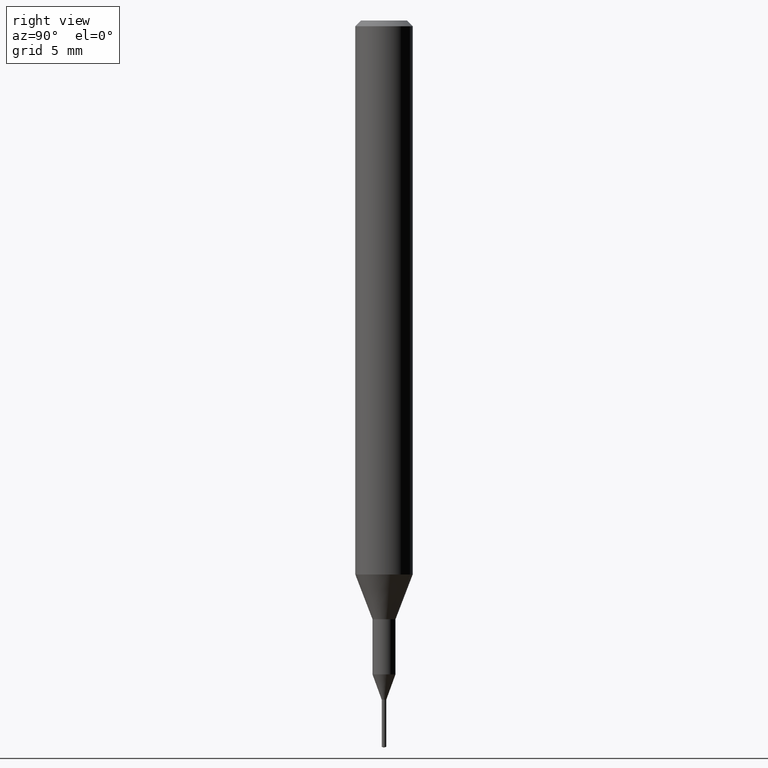
[diagram: clean part render]
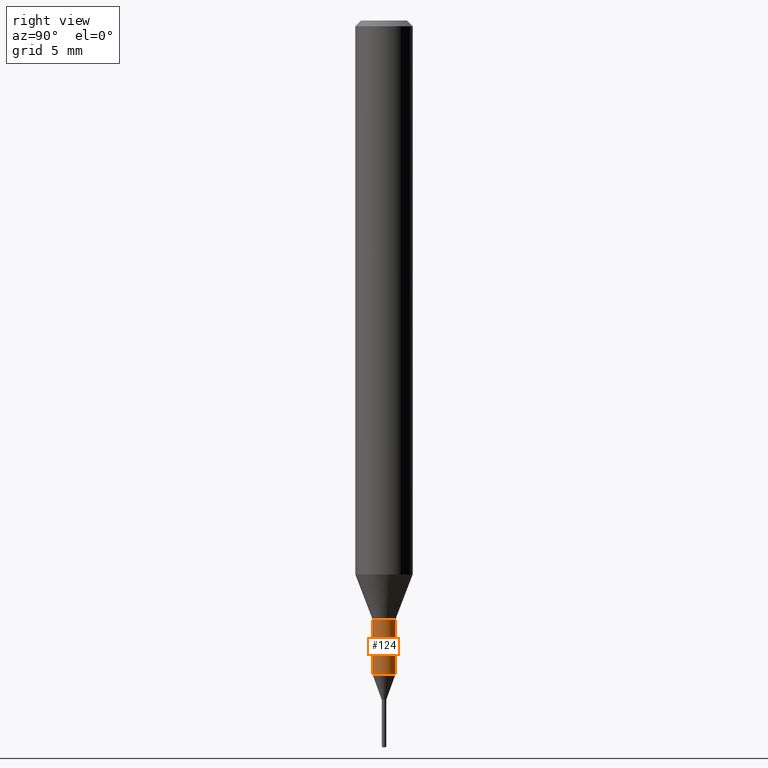
[diagram: same view with one face highlighted and labeled with its STEP entity id]
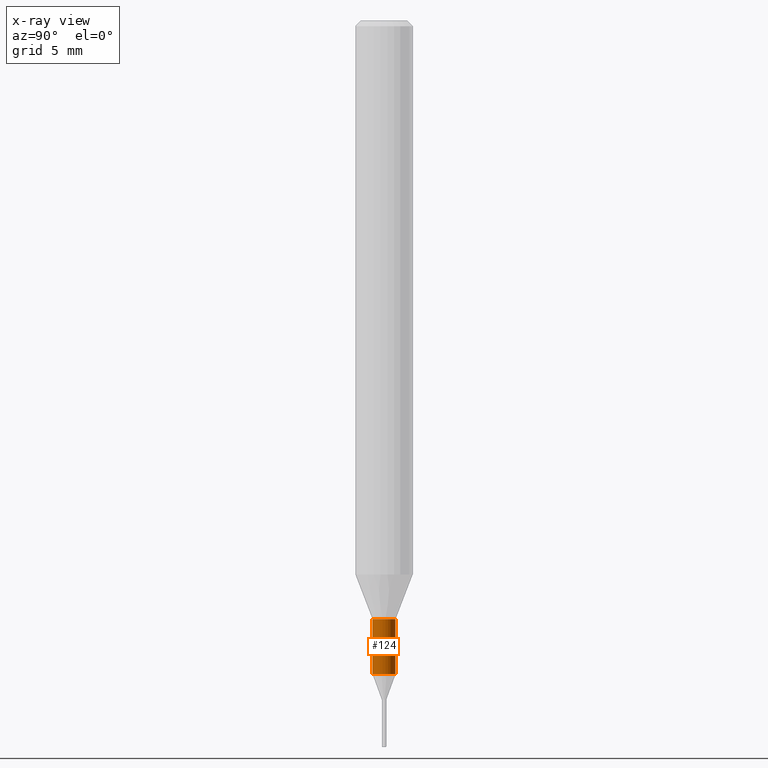
[diagram: x-ray of the same camera — body ghosted, the highlighted face saturated]
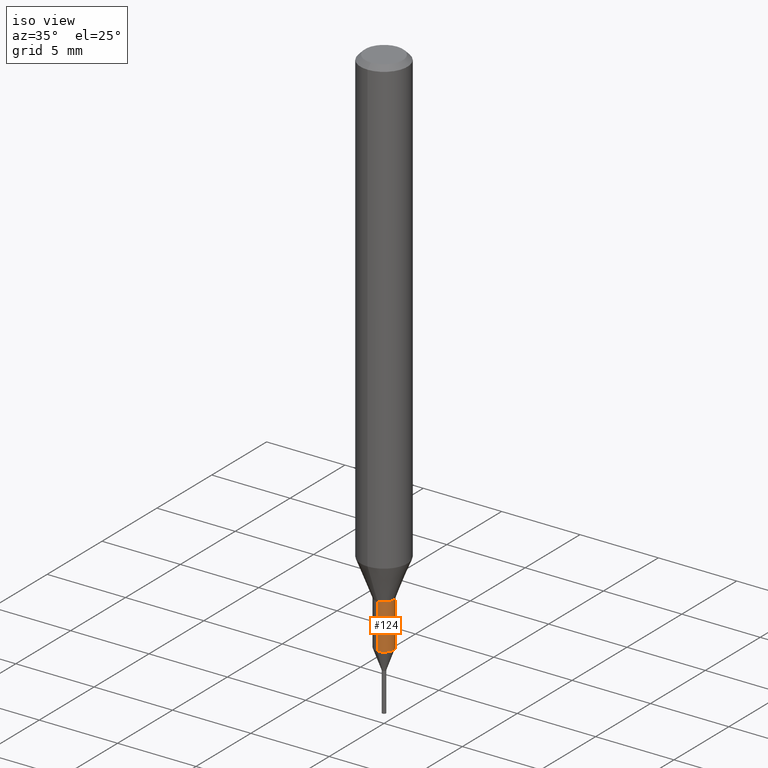
[diagram: same view with one face highlighted and labeled with its STEP entity id]
A machine part, right view. The second image highlights one B-rep face of the part: STEP entity #124.
The next image is the same camera in x-ray: the body ghosted, the highlighted face saturated — about 0% of this face is hidden behind the body in this view.
A second angle (iso view) of the same face is appended — the face is thin or edge-on in the first view.
In plain terms, the highlighted cylindrical surface (edge-blend (fillet) strip) has radius 0.5999 mm, axis along (-0, -0, 1).
Its self-contained STEP definition (entity closure, byte-faithful):
#124=ADVANCED_FACE('',(#303),#304,.T.);
#128=VERTEX_POINT('',#309);
#144=EDGE_CURVE('',#176,#128,#329,.T.);
#176=VERTEX_POINT('',#366);
#184=VERTEX_POINT('',#374);
#190=VERTEX_POINT('',#380);
#198=EDGE_CURVE('',#190,#184,#389,.T.);
#200=EDGE_CURVE('',#128,#184,#391,.T.);
#208=EDGE_CURVE('',#190,#176,#400,.T.);
#303=FACE_OUTER_BOUND('',#493,.T.);
#304=CYLINDRICAL_SURFACE('',#494,0.59995);
#309=CARTESIAN_POINT('',(7.34702581975735E-017,-0.59995,-34.181));
#329=CIRCLE('',#523,0.59995);
#366=CARTESIAN_POINT('',(0.0,0.59995,-34.181));
#374=CARTESIAN_POINT('',(7.34702581975735E-017,-0.59995,-31.3));
#380=CARTESIAN_POINT('',(0.0,0.59995,-31.3));
#389=CIRCLE('',#598,0.59995);
#391=LINE('',#601,#602);
#400=LINE('',#616,#617);
#493=EDGE_LOOP('',(#724,#725,#726,#727));
#494=AXIS2_PLACEMENT_3D('',#728,#729,#730);
#523=AXIS2_PLACEMENT_3D('',#773,#774,#775);
#598=AXIS2_PLACEMENT_3D('',#848,#849,#850);
#601=CARTESIAN_POINT('',(7.34702581975735E-017,-0.59995,-32.7405));
#602=VECTOR('',#851,1.0);
#616=CARTESIAN_POINT('',(-7.34702581975735E-017,0.59995,-32.7405));
#617=VECTOR('',#862,1.0);
#724=ORIENTED_EDGE('',*,*,#208,.F.);
#725=ORIENTED_EDGE('',*,*,#198,.T.);
#726=ORIENTED_EDGE('',*,*,#200,.F.);
#727=ORIENTED_EDGE('',*,*,#144,.F.);
#728=CARTESIAN_POINT('',(0.0,0.0,-32.7405));
#729=DIRECTION('',(-0.0,-0.0,1.0));
#730=DIRECTION('',(0.0,1.0,0.0));
#773=CARTESIAN_POINT('',(0.0,0.0,-34.181));
#774=DIRECTION('',(0.0,0.0,-1.0));
#775=DIRECTION('',(0.0,1.0,0.0));
#848=CARTESIAN_POINT('',(0.0,0.0,-31.3));
#849=DIRECTION('',(0.0,0.0,-1.0));
#850=DIRECTION('',(0.0,1.0,0.0));
#851=DIRECTION('',(-0.0,-0.0,1.0));
#862=DIRECTION('',(0.0,0.0,-1.0));